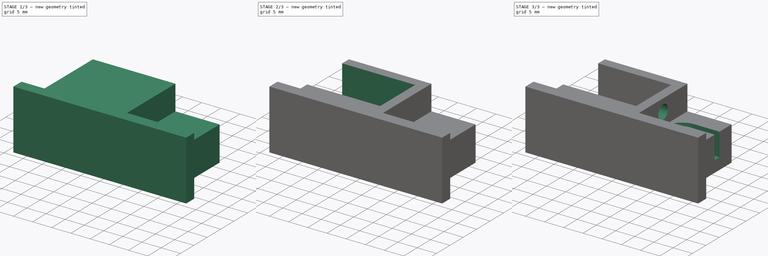
[diagram: build sequence overview — one tinted view per stage of 3, left to right]
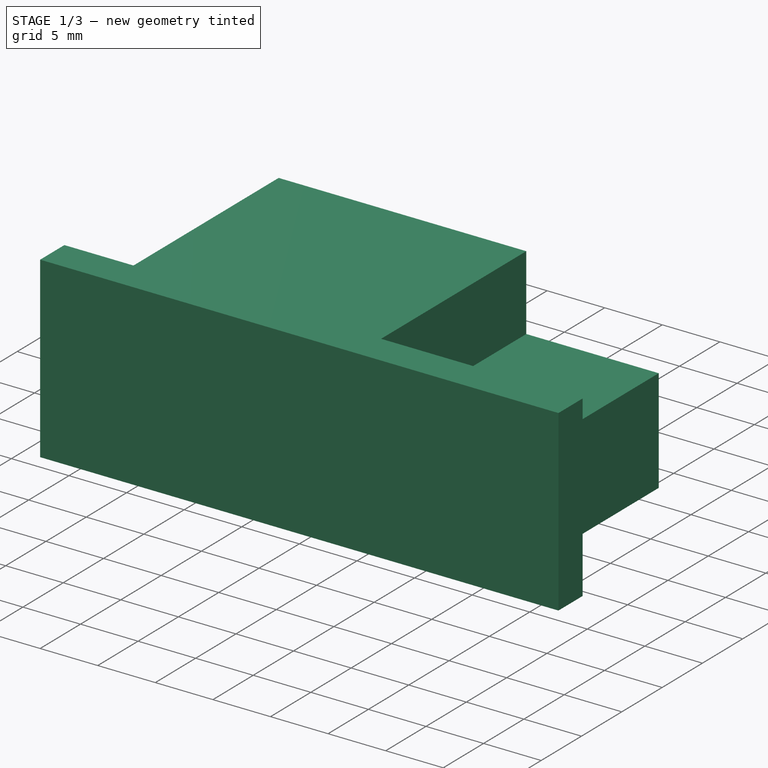
[diagram: stage 1 of 3 — iso view after this stage's code; geometry added in this stage tinted green]
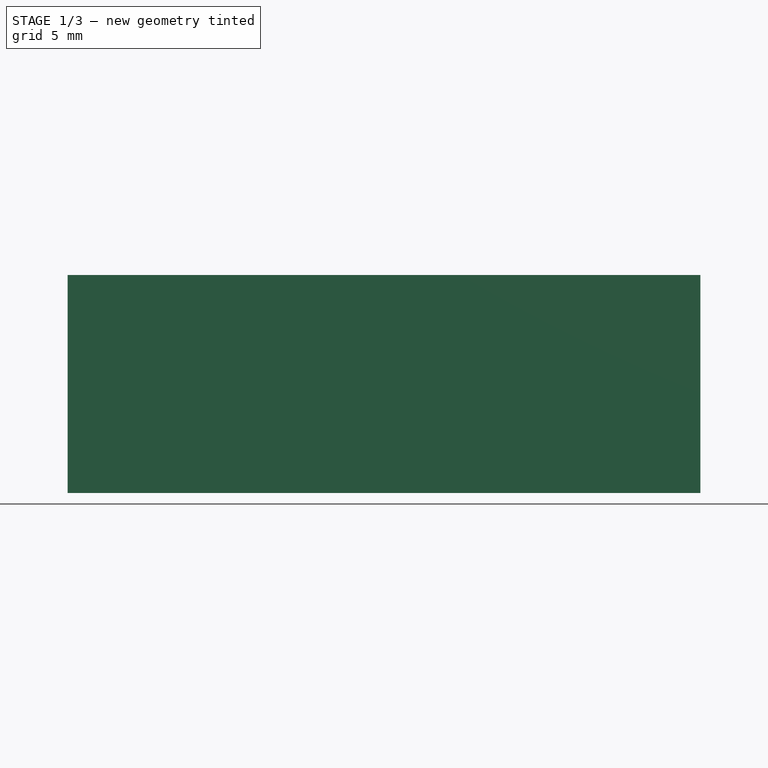
[diagram: stage 1 of 3 — front view after this stage's code; geometry added in this stage tinted green]
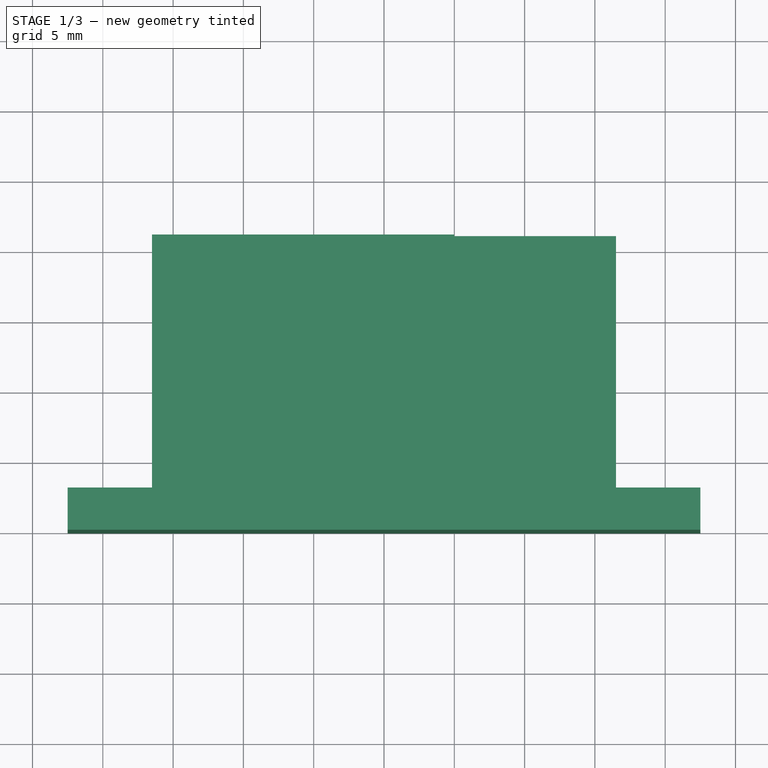
[diagram: stage 1 of 3 — top view after this stage's code; geometry added in this stage tinted green]
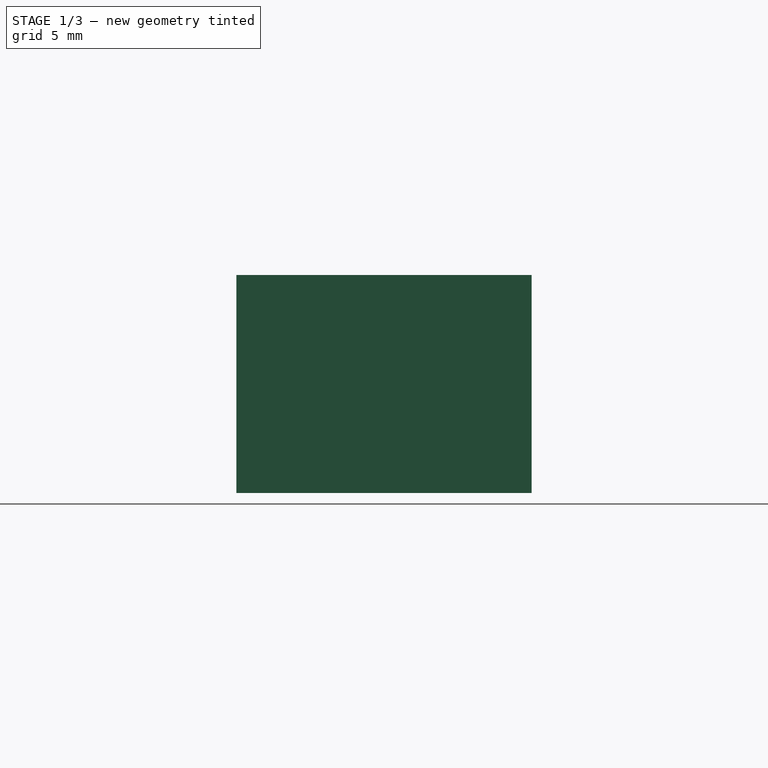
[diagram: stage 1 of 3 — right view after this stage's code; geometry added in this stage tinted green]
FCSTD DOCUMENT  (FreeCAD 0.16R6706 (Git))
Label: Regulador Correia Horizontal
License: All rights reserved
LicenseURL: http://en.wikipedia.org/wiki/All_rights_reserved
objects: Sketcher::SketchObject×5, PartDesign::Pocket×4, PartDesign::Pad×1
note: 15 computed .brp shape members not serialized (recipe doc carries the construction recipe); baked Part::Feature solids carry a one-line shape summary decoded from their .brp

FEATURE [Sketcher::SketchObject] Sketch
  sketch-geometry (8):
    g0: LineSegment StartX=-16.5 StartY=3 StartZ=0 EndX=-22.5 EndY=3 EndZ=0
    g1: LineSegment StartX=-22.5 StartY=3 StartZ=0 EndX=-22.5 EndY=0 EndZ=0
    g2: LineSegment StartX=-22.5 StartY=0 StartZ=0 EndX=22.5 EndY=0 EndZ=0
    g3: LineSegment StartX=22.5 StartY=0 StartZ=0 EndX=22.5 EndY=3 EndZ=0
    g4: LineSegment StartX=22.5 StartY=3 StartZ=0 EndX=16.5 EndY=3 EndZ=0
    g5: LineSegment StartX=16.5 StartY=3 StartZ=0 EndX=16.5 EndY=21 EndZ=0
    g6: LineSegment StartX=16.5 StartY=21 StartZ=0 EndX=-16.5 EndY=21 EndZ=0
    g7: LineSegment StartX=-16.5 StartY=21 StartZ=0 EndX=-16.5 EndY=3 EndZ=0
  constraints (24):
    c: Coincident(g0,g1)
    c: Coincident(g1,g2)
    c: Coincident(g2,g3)
    c: Coincident(g3,g4)
    c: Coincident(g4,g5)
    c: Coincident(g6,g7)
    c: Coincident(g0,g7)
    c: Horizontal(g0)
    c: Horizontal(g6)
    c: Horizontal(g4)
    c: Horizontal(g2)
    c: Vertical(g1)
    c: Vertical(g7)
    c: Vertical(g5)
    c: Vertical(g3)
    c: DistanceX(g2,g2) = 45
    c: Equal(g1,g3)
    c: DistanceY(g3,g3) = 3
    c: Equal(g0,g4)
    c: DistanceX(g4,g4) = 6
    c: Coincident(g5,g6)
    c: DistanceY(g5,g5) = 18
    c: DistanceX(g6,g6) = 33
    c: Symmetric(g1,g2,g-1)
FEATURE [PartDesign::Pad] Pad
  Length = 15.5
  Length2 = 100
  Sketch = -> Sketch
  Type = 0
FEATURE [Sketcher::SketchObject] Sketch001
  ExternalGeometry = -> [Pad]
  Placement = pos=(0,0,15.5) rot=(0,0,1;0rad)
  Support = -> Pad [Face10]
  sketch-geometry (4):
    g0: LineSegment StartX=16.5 StartY=21 StartZ=0 EndX=5 EndY=21 EndZ=0
    g1: LineSegment StartX=5 StartY=21 StartZ=0 EndX=5 EndY=3 EndZ=0
    g2: LineSegment StartX=5 StartY=3 StartZ=0 EndX=16.5 EndY=3 EndZ=0
    g3: LineSegment StartX=16.5 StartY=3 StartZ=0 EndX=16.5 EndY=21 EndZ=0
  constraints (10):
    c: Coincident(g0,g1)
    c: Coincident(g1,g2)
    c: Coincident(g2,g3)
    c: Coincident(g3,g0)
    c: Horizontal(g0)
    c: Horizontal(g2)
    c: Vertical(g1)
    c: Vertical(g3)
    c: Coincident(g-3,g2)
    c: DistanceX(g0,g0) = 11.5
FEATURE [PartDesign::Pocket] Pocket
  Length = 6.5
  Sketch = -> Sketch001
  Type = 0
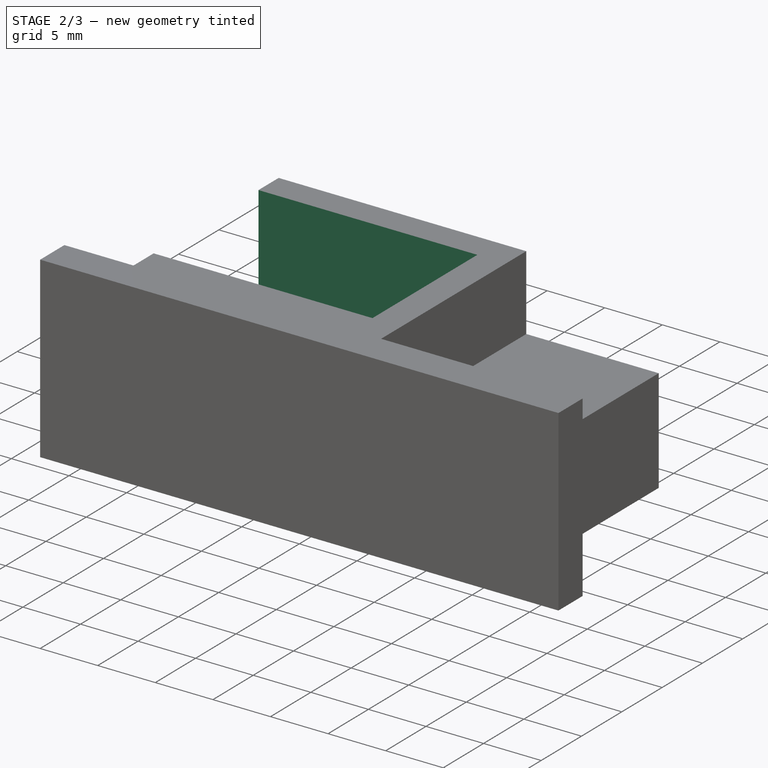
[diagram: stage 2 of 3 — iso view after this stage's code; geometry added in this stage tinted green]
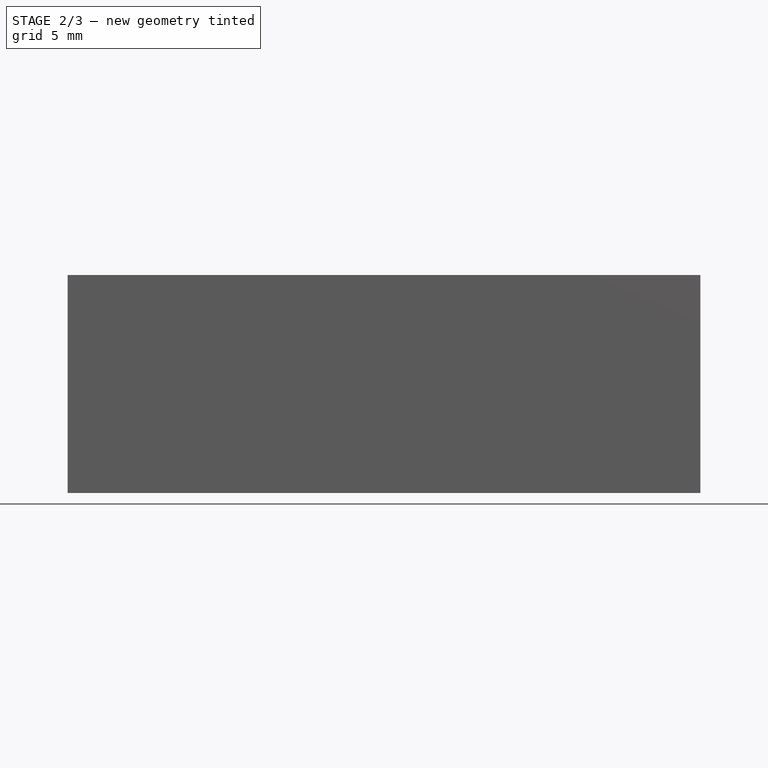
[diagram: stage 2 of 3 — front view after this stage's code; geometry added in this stage tinted green]
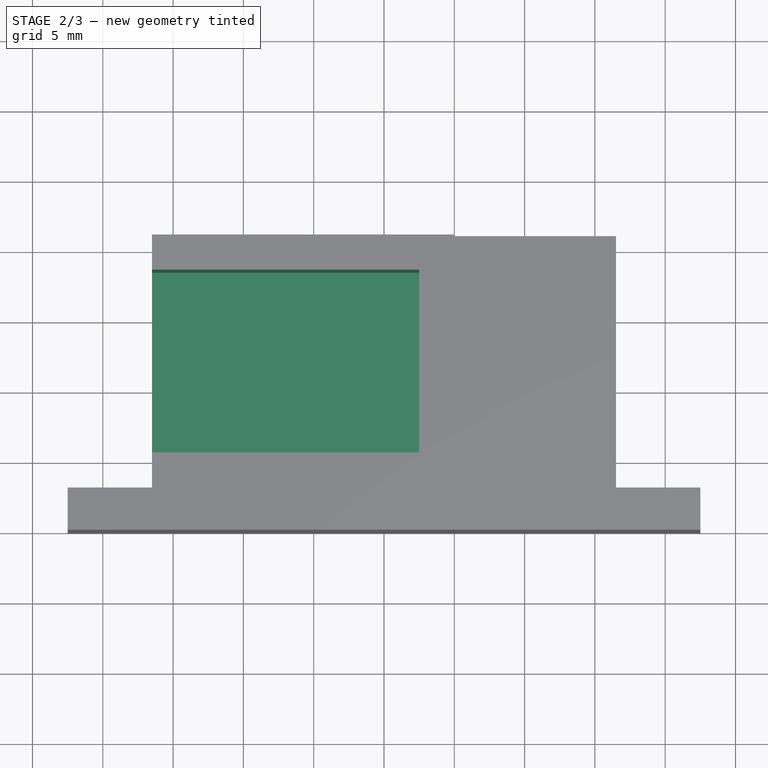
[diagram: stage 2 of 3 — top view after this stage's code; geometry added in this stage tinted green]
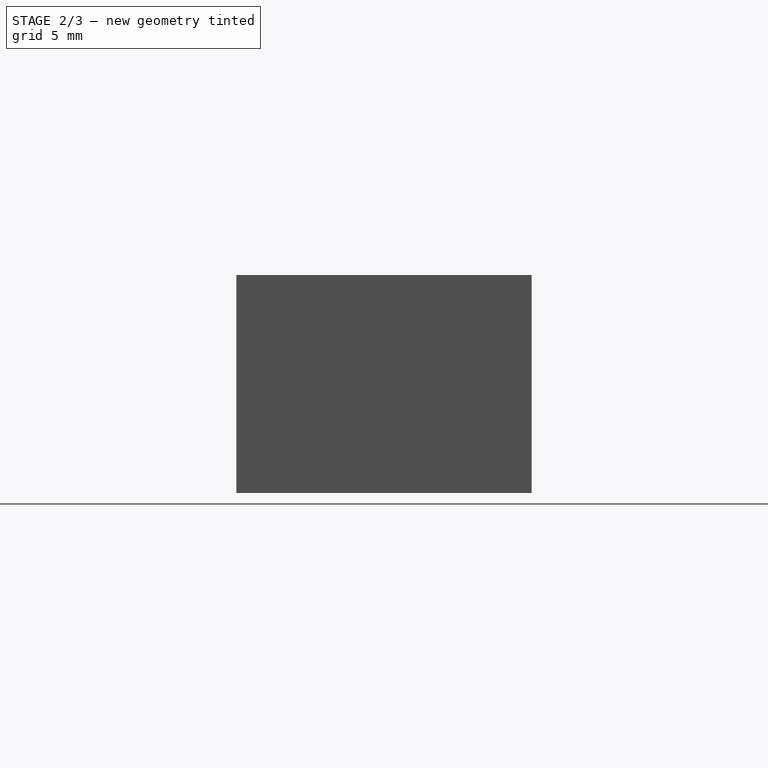
[diagram: stage 2 of 3 — right view after this stage's code; geometry added in this stage tinted green]
FEATURE [Sketcher::SketchObject] Sketch002
  ExternalGeometry = -> [Pocket]
  Placement = pos=(0,0,15.5) rot=(0,0,1;0rad)
  Support = -> Pocket [Face5]
  sketch-geometry (4):
    g0: LineSegment StartX=-26.1988 StartY=18.5 StartZ=0 EndX=2.5 EndY=18.5 EndZ=0
    g1: LineSegment StartX=2.5 StartY=18.5 StartZ=0 EndX=2.5 EndY=5.5 EndZ=0
    g2: LineSegment StartX=2.5 StartY=5.5 StartZ=0 EndX=-26.1988 EndY=5.5 EndZ=0
    g3: LineSegment StartX=-26.1988 StartY=5.5 StartZ=0 EndX=-26.1988 EndY=18.5 EndZ=0
  constraints (11):
    c: Coincident(g0,g1)
    c: Coincident(g1,g2)
    c: Coincident(g2,g3)
    c: Coincident(g3,g0)
    c: Horizontal(g0)
    c: Horizontal(g2)
    c: Vertical(g1)
    c: Vertical(g3)
    c: DistanceX(g0,g-3) = 2.5
    c: DistanceY(g0,g-3) = 2.5
    c: DistanceY(g-4,g2) = 2.5
FEATURE [PartDesign::Pocket] Pocket001
  Length = 12.5
  Sketch = -> Sketch002
  Type = 0
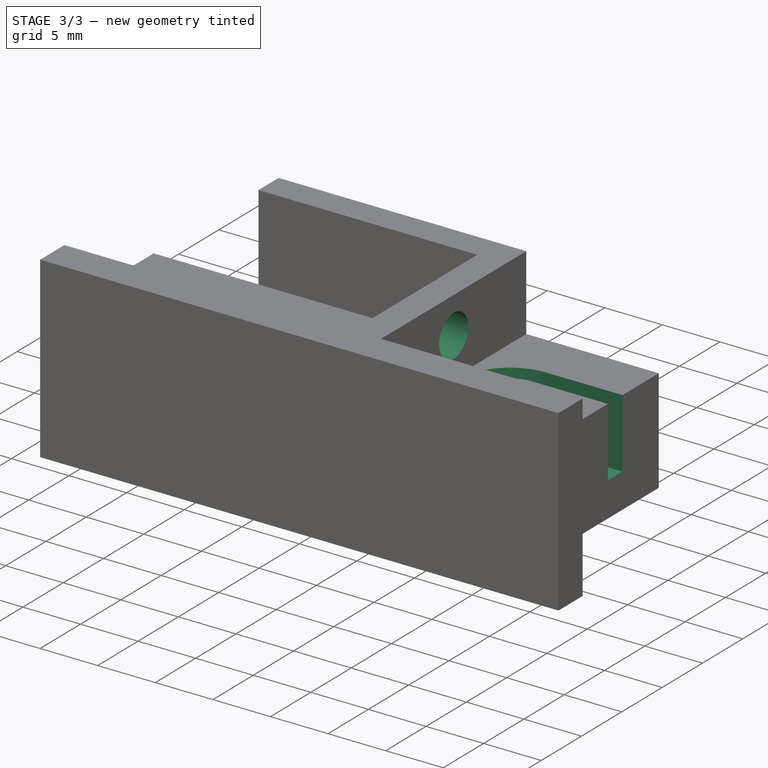
[diagram: stage 3 of 3 — iso view after this stage's code; geometry added in this stage tinted green]
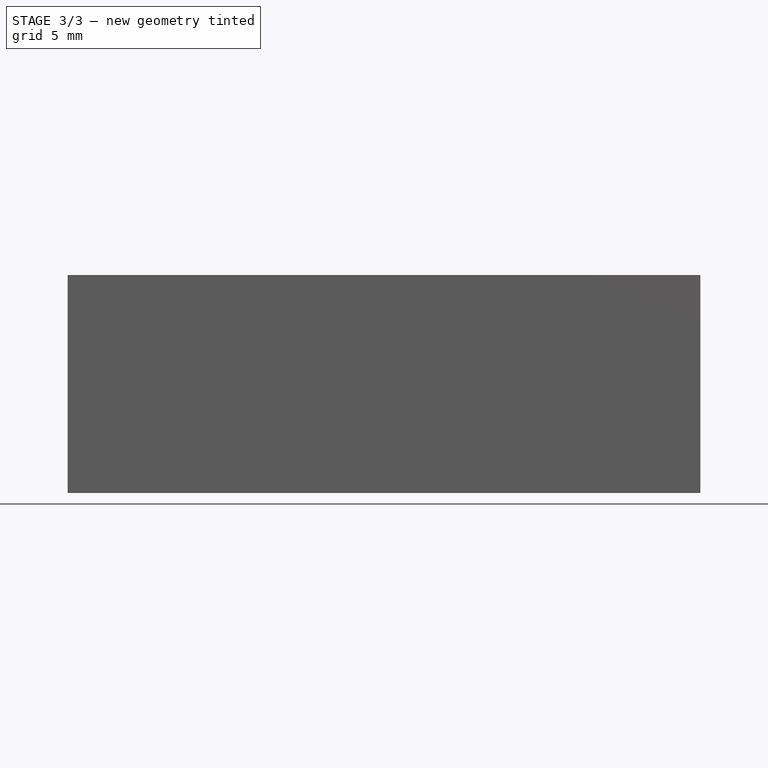
[diagram: stage 3 of 3 — front view after this stage's code; geometry added in this stage tinted green]
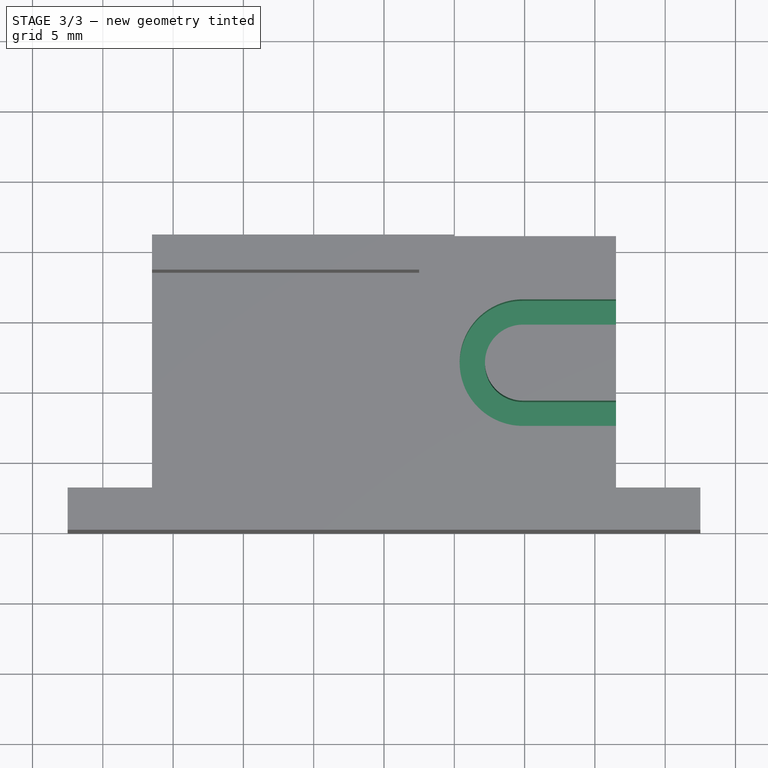
[diagram: stage 3 of 3 — top view after this stage's code; geometry added in this stage tinted green]
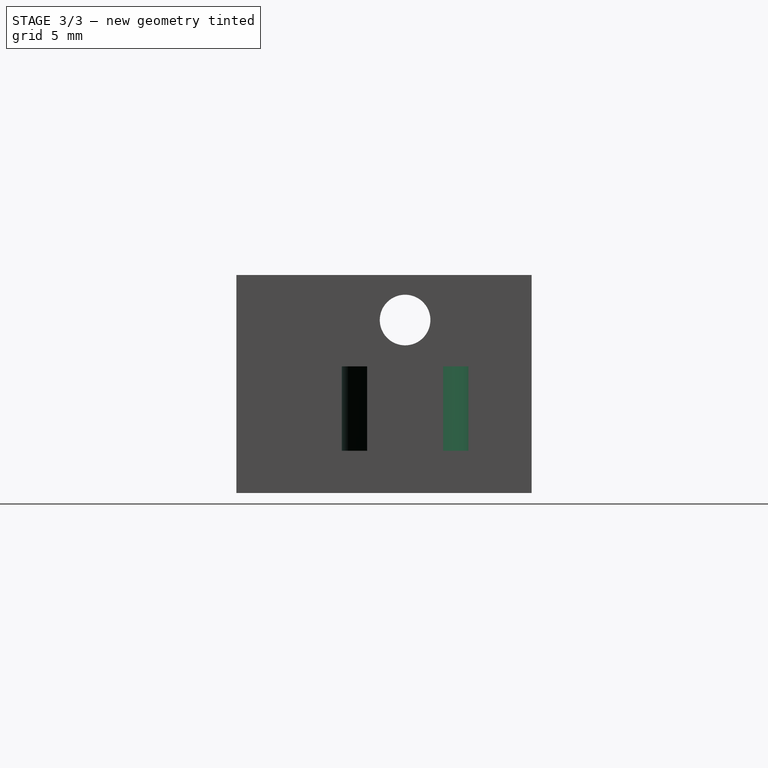
[diagram: stage 3 of 3 — right view after this stage's code; geometry added in this stage tinted green]
FEATURE [Sketcher::SketchObject] Sketch003
  ExternalGeometry = -> [Pocket001]
  Placement = pos=(2.5,0,0) rot=(0.57735,-0.57735,-0.57735;2.0944rad)
  Support = -> Pocket001 [Face16]
  sketch-geometry (2):
    g0: LineSegment [constr] StartX=-12 StartY=15.5 StartZ=0 EndX=-12 EndY=12.3 EndZ=0
    g1: Circle CenterX=-12 CenterY=12.3 CenterZ=0 NormalX=0 NormalY=0 NormalZ=1 Radius=1.8
  constraints (5):
    c: Vertical(g0)
    c: DistanceY(g0,g0) = 3.2
    c: Radius(g1) = 1.8
    c: Coincident(g0,g1)
    c: Symmetric(g-3,g-3,g0)
FEATURE [PartDesign::Pocket] Pocket002
  Length = 5
  Sketch = -> Sketch003
  Type = 2
FEATURE [Sketcher::SketchObject] Sketch004
  ExternalGeometry = -> [Pocket002]
  Placement = pos=(0,0,9) rot=(0,0,1;0rad)
  Support = -> Pocket002 [Face17]
  sketch-geometry (10):
    g0: LineSegment [constr] StartX=9.88235 StartY=12 StartZ=0 EndX=16.5 EndY=12 EndZ=0
    g1: ArcOfCircle CenterX=9.88235 CenterY=12 CenterZ=0 NormalX=0 NormalY=0 NormalZ=1 Radius=4.50199 StartAngle=1.5708 EndAngle=4.71239
    g2: ArcOfCircle CenterX=9.88235 CenterY=12 CenterZ=0 NormalX=0 NormalY=0 NormalZ=1 Radius=2.70199 StartAngle=1.5708 EndAngle=4.71239
    g3: LineSegment [constr] StartX=9.88235 StartY=16.502 StartZ=0 EndX=9.88235 EndY=7.49801 EndZ=0
    g4: LineSegment StartX=9.88235 StartY=16.502 StartZ=0 EndX=17.6367 EndY=16.502 EndZ=0
    g5: LineSegment StartX=9.88235 StartY=14.702 StartZ=0 EndX=17.6367 EndY=14.702 EndZ=0
    g6: LineSegment StartX=9.88235 StartY=9.29801 StartZ=0 EndX=17.6367 EndY=9.29801 EndZ=0
    g7: LineSegment StartX=9.88235 StartY=7.49801 StartZ=0 EndX=17.6367 EndY=7.49801 EndZ=0
    g8: LineSegment StartX=17.6367 StartY=16.502 StartZ=0 EndX=17.6367 EndY=14.702 EndZ=0
    g9: LineSegment StartX=17.6367 StartY=9.29801 StartZ=0 EndX=17.6367 EndY=7.49801 EndZ=0
  constraints (27):
    c: Horizontal(g0)
    c: Symmetric(g-4,g-4,g0)
    c: Coincident(g0,g1)
    c: Coincident(g2,g0)
    c: Vertical(g3)
    c: Symmetric(g3,g3,g0)
    c: Coincident(g1,g3)
    c: Coincident(g1,g3)
    c: PointOnObject(g2,g3)
    c: PointOnObject(g2,g3)
    c: Horizontal(g7)
    c: Horizontal(g6)
    c: Horizontal(g5)
    c: Horizontal(g4)
    c: Coincident(g1,g4)
    c: Coincident(g2,g5)
    c: Coincident(g2,g6)
    c: Coincident(g1,g7)
    c: Vertical(g9)
    c: Vertical(g8)
    c: Coincident(g4,g8)
    c: Coincident(g5,g8)
    c: Coincident(g6,g9)
    c: Coincident(g7,g9)
    c: Equal(g6,g5)
    c: Equal(g8,g9)
    c: DistanceY(g8,g8) = 1.8
FEATURE [PartDesign::Pocket] Pocket003
  Length = 6
  Sketch = -> Sketch004
  Type = 0
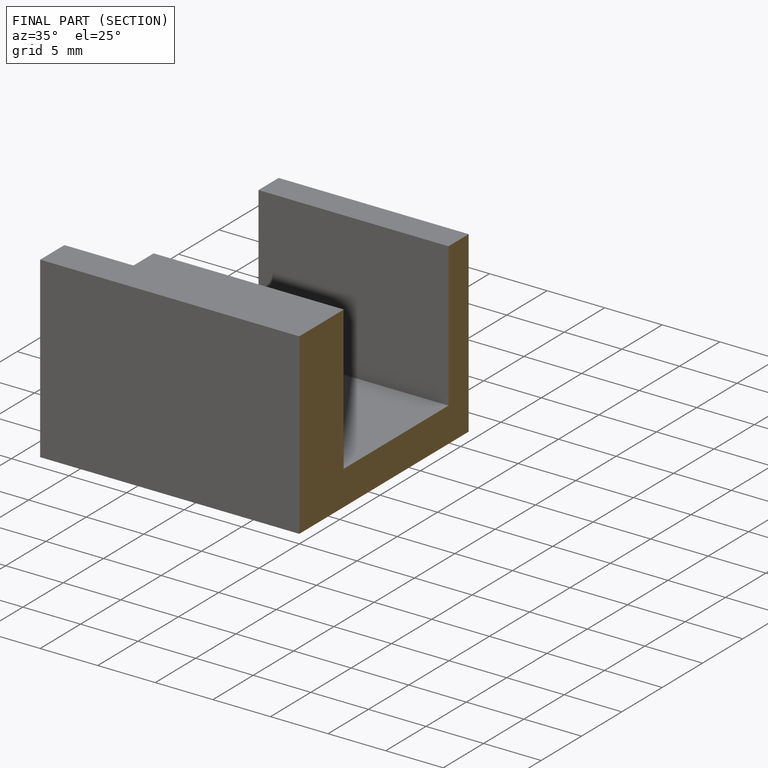
[diagram: finished part — half-section view (interior)]
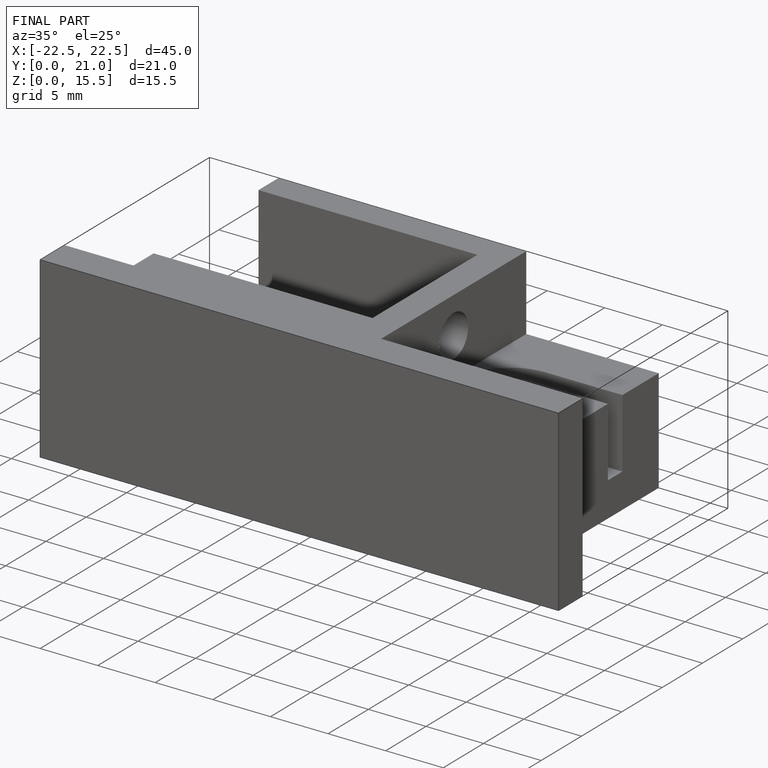
[diagram: finished part — iso view with bounding-box wireframe]
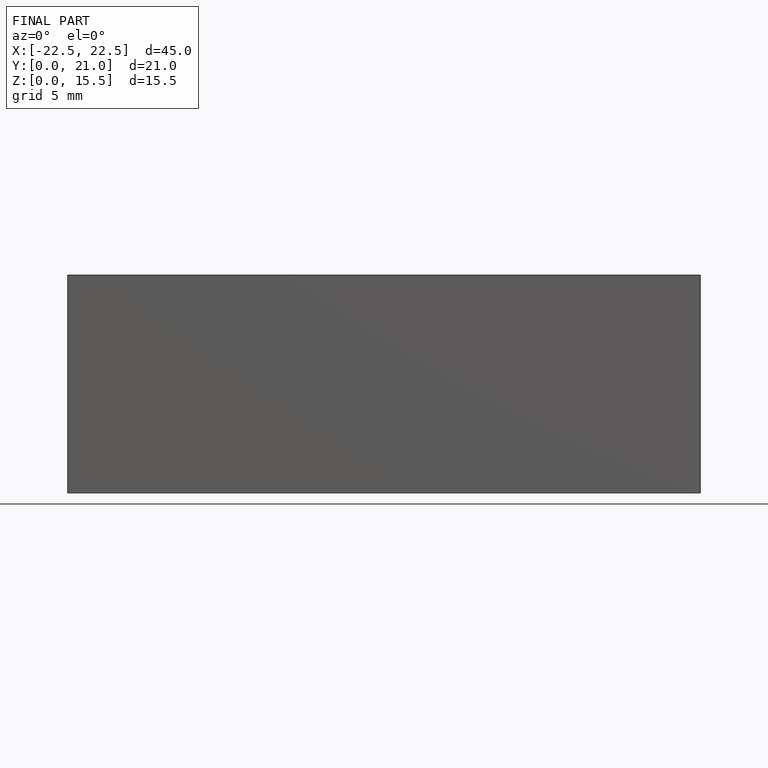
[diagram: finished part — front view with bounding-box wireframe]
